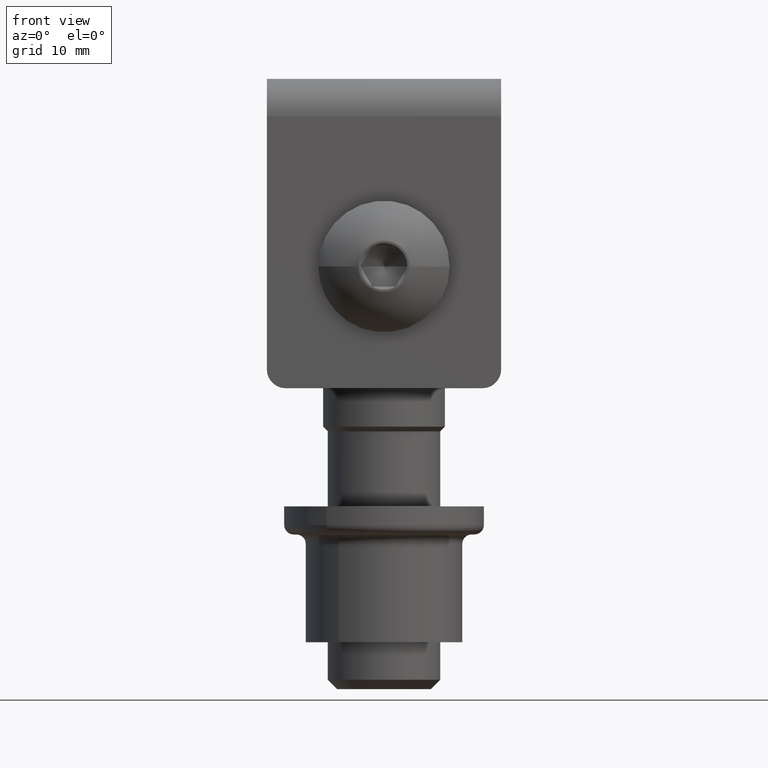
[diagram: clean part render]
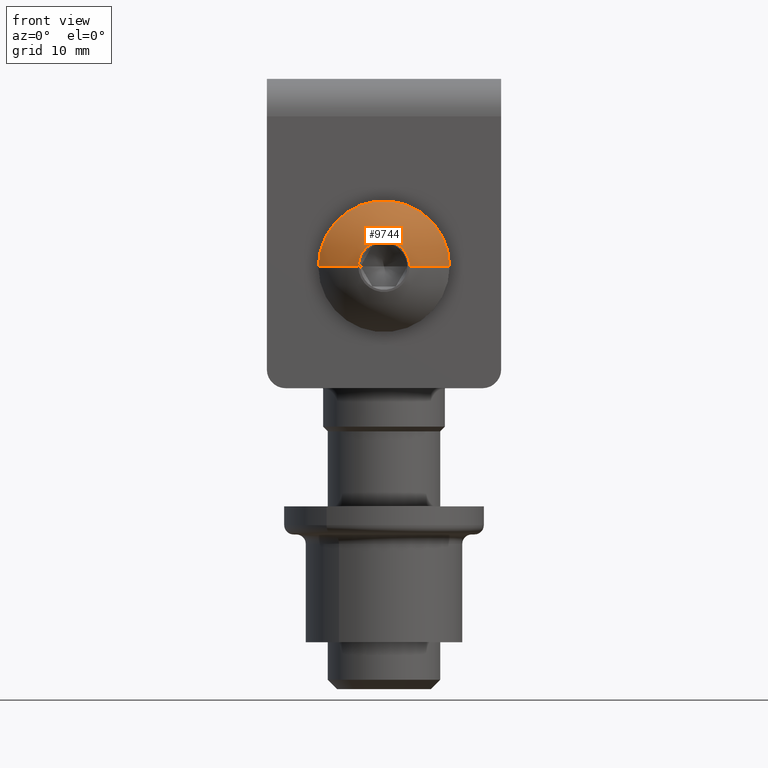
[diagram: same view with one face highlighted and labeled with its STEP entity id]
A machine part, front view. The second image highlights one B-rep face of the part: STEP entity #9744.
In plain terms, the highlighted spherical surface has radius 8.5356 mm.
Its self-contained STEP definition (entity closure, byte-faithful):
#395 = EDGE_CURVE ( 'NONE', #11726, #1868, #12022, .T. ) ;
#502 = CARTESIAN_POINT ( 'NONE',  ( 8.673617379883758400E-016, 12.11565684726562100, 0.0000000000000000000 ) ) ;
#635 = CARTESIAN_POINT ( 'NONE',  ( -2.738650000000010500, 20.20000000000003100, 0.0000000000000000000 ) ) ;
#872 = CARTESIAN_POINT ( 'NONE',  ( 2.738649999999786600, 20.20000000000006000, 5.963203275257813900E-016 ) ) ;
#880 = DIRECTION ( 'NONE',  ( 0.0000000000000000000, 1.000000000000000000, -3.700572925628485800E-030 ) ) ;
#1346 = CARTESIAN_POINT ( 'NONE',  ( -7.000000000000094100, 16.99999999999995000, -1.807486803048767300E-029 ) ) ;
#1868 = VERTEX_POINT ( 'NONE', #635 ) ;
#1930 = EDGE_CURVE ( 'NONE', #3330, #1868, #6970, .T. ) ;
#2070 = AXIS2_PLACEMENT_3D ( 'NONE', #9683, #14203, #12957 ) ;
#2537 = CIRCLE ( 'NONE', #3132, 8.535619956023333900 ) ;
#2663 = ORIENTED_EDGE ( 'NONE', *, *, #1930, .F. ) ;
#3132 = AXIS2_PLACEMENT_3D ( 'NONE', #502, #10597, #5025 ) ;
#3330 = VERTEX_POINT ( 'NONE', #872 ) ;
#4224 = DIRECTION ( 'NONE',  ( 2.049781495039846900E-044, -3.700572925628485800E-030, -1.000000000000000000 ) ) ;
#5025 = DIRECTION ( 'NONE',  ( 1.000000000000000000, 0.0000000000000000000, 1.224646799147353200E-016 ) ) ;
#5662 = EDGE_CURVE ( 'NONE', #10313, #3330, #2537, .T. ) ;
#5711 = EDGE_CURVE ( 'NONE', #10313, #11726, #11539, .T. ) ;
#5799 = AXIS2_PLACEMENT_3D ( 'NONE', #10837, #4224, #880 ) ;
#6207 = ORIENTED_EDGE ( 'NONE', *, *, #5711, .T. ) ;
#6970 = CIRCLE ( 'NONE', #2070, 2.738649999999898600 ) ;
#8323 = CARTESIAN_POINT ( 'NONE',  ( 6.999999999999973400, 17.00000000000002500, 8.572527594031291800E-016 ) ) ;
#9415 = SPHERICAL_SURFACE ( 'NONE', #12890, 8.535619956023333900 ) ;
#9683 = CARTESIAN_POINT ( 'NONE',  ( -1.118896642005046000E-013, 20.20000000000004500, 0.0000000000000000000 ) ) ;
#9705 = DIRECTION ( 'NONE',  ( -1.000000000000000000, -5.487303100733992600E-015, 0.0000000000000000000 ) ) ;
#9744 = ADVANCED_FACE ( 'NONE', ( #11141 ), #9415, .T. ) ;
#10265 = AXIS2_PLACEMENT_3D ( 'NONE', #13028, #11802, #12870 ) ;
#10313 = VERTEX_POINT ( 'NONE', #8323 ) ;
#10597 = DIRECTION ( 'NONE',  ( -1.224646799147353200E-016, 3.022229761664031500E-030, 1.000000000000000000 ) ) ;
#10837 = CARTESIAN_POINT ( 'NONE',  ( 8.673617379883758400E-016, 12.11565684726562100, 0.0000000000000000000 ) ) ;
#11010 = EDGE_LOOP ( 'NONE', ( #13749, #6207, #12234, #2663 ) ) ;
#11141 = FACE_OUTER_BOUND ( 'NONE', #11010, .T. ) ;
#11539 = CIRCLE ( 'NONE', #10265, 7.000000000000016900 ) ;
#11726 = VERTEX_POINT ( 'NONE', #1346 ) ;
#11802 = DIRECTION ( 'NONE',  ( -5.539092287153678800E-015, 1.000000000000000000, -3.700572925628485800E-030 ) ) ;
#12022 = CIRCLE ( 'NONE', #5799, 8.535619956023333900 ) ;
#12234 = ORIENTED_EDGE ( 'NONE', *, *, #395, .T. ) ;
#12870 = DIRECTION ( 'NONE',  ( -1.000000000000000000, -5.451988067355666500E-015, 0.0000000000000000000 ) ) ;
#12890 = AXIS2_PLACEMENT_3D ( 'NONE', #13034, #14174, #9705 ) ;
#12957 = DIRECTION ( 'NONE',  ( -1.000000000000000000, -5.067382764433195800E-015, 0.0000000000000000000 ) ) ;
#13028 = CARTESIAN_POINT ( 'NONE',  ( -9.416456888161213900E-014, 16.99999999999998600, 0.0000000000000000000 ) ) ;
#13034 = CARTESIAN_POINT ( 'NONE',  ( 8.673617379883758400E-016, 12.11565684726562100, 0.0000000000000000000 ) ) ;
#13749 = ORIENTED_EDGE ( 'NONE', *, *, #5662, .F. ) ;
#14174 = DIRECTION ( 'NONE',  ( -2.030616528929345100E-044, 3.700572925628485800E-030, 1.000000000000000000 ) ) ;
#14203 = DIRECTION ( 'NONE',  ( -5.539092287153678800E-015, 1.000000000000000000, -3.700572925628485800E-030 ) ) ;